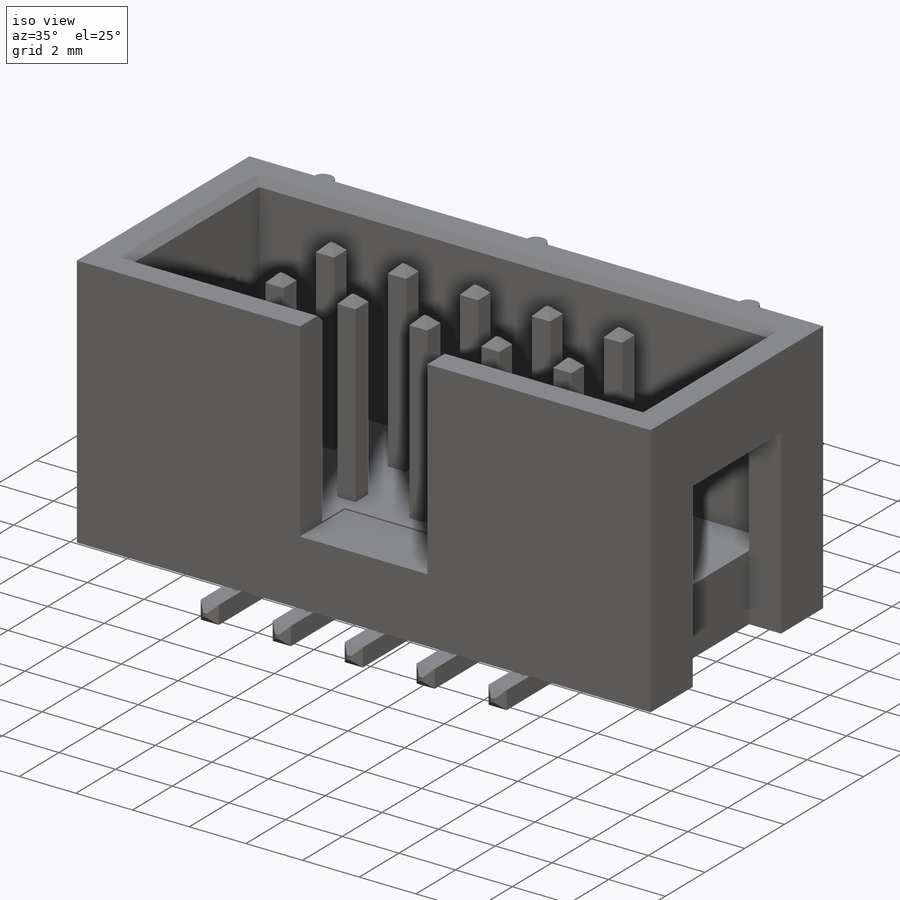
[diagram: iso view]
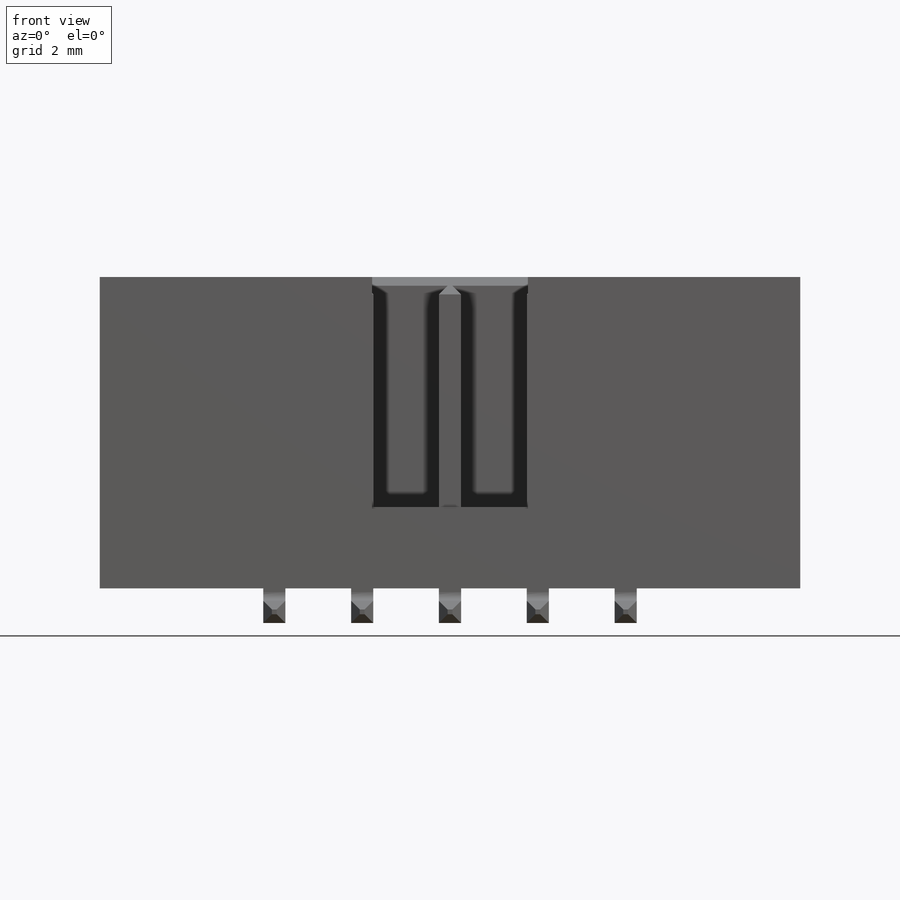
[diagram: front view]
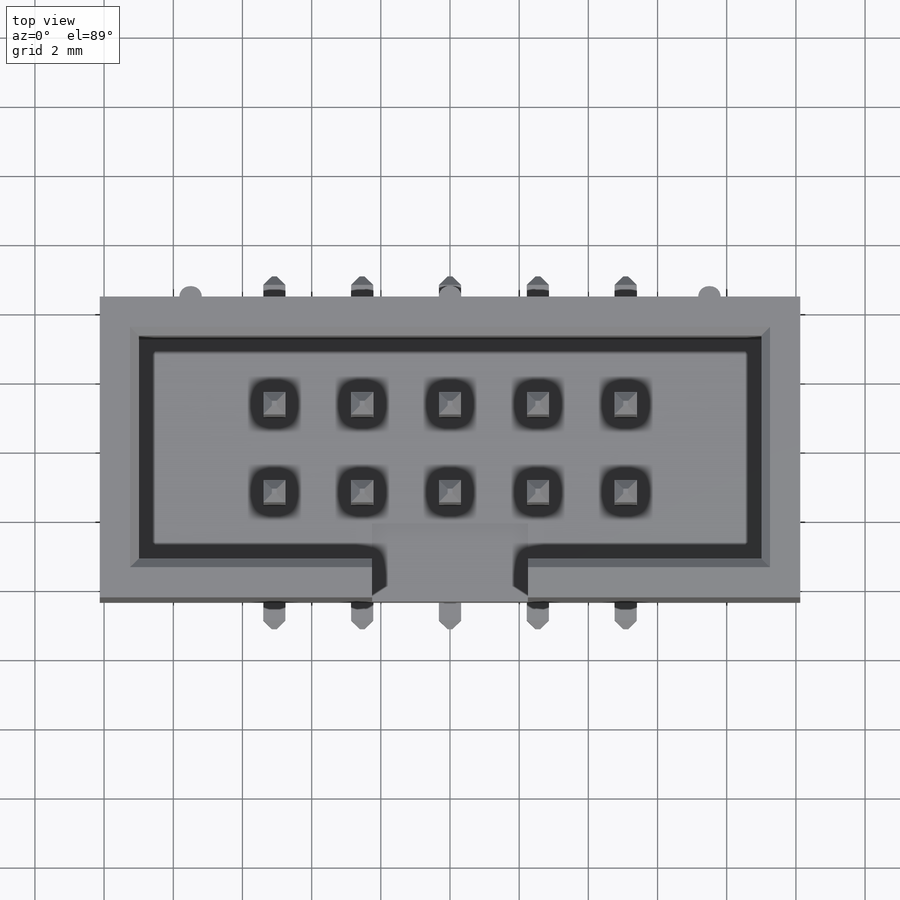
[diagram: top view]
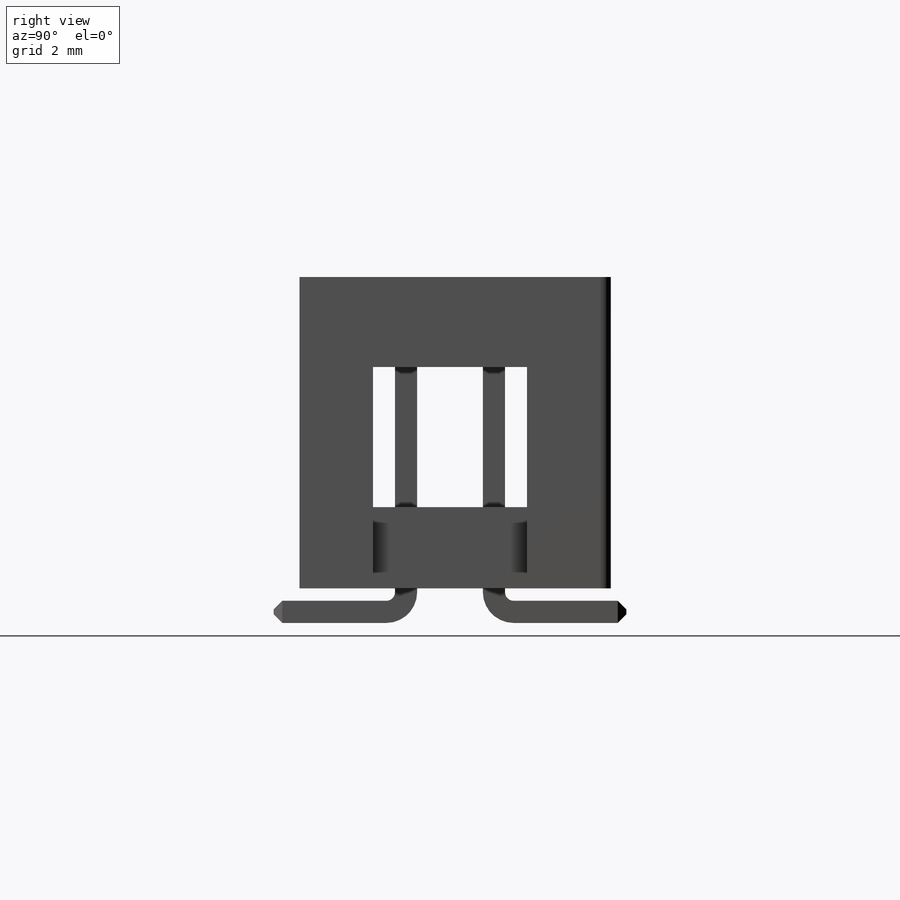
[diagram: right view]
SOLIDWORKS PART (.sldprt)
format: sldprt  version: not decoded by parser v0  size: 649,728 bytes
history: native  units: mm
features: sketch x28, mirror x11, sheet_metal_op x11, pattern_linear x9, cut_extrude x3, plane x3, chamfer x3, extrude x2, material x1, fillet x1 + 10 further entries (+13 scaffold rows collapsed; 10 parser-record rows omitted)
feature tree (105):
  scaffold x13  (default folders/planes/origin — collapsed)
  material  "Material <not specified>"
  sketch  "Sketch1"  dims[D1=20.25mm D2=8.7mm]
  extrude  "Boss-Extrude1"  Depth=9mm
  sketch  "Sketch2"  dims[c1.D1=7.5mm c1.D2=0.65mm c2.D1=2.625mm]
  extrude  "Boss-Extrude2"  Depth=0.3mm
  fillet  "Fillet1"  Radius=0.3mm
  sketch  "Sketch3"  dims[D1=18.0mm D2=6.45mm D3=8.7mm]
  cut_extrude  "Cut-Extrude1"  Depth=6.65mm
  sketch  "Sketch4"  dims[D1=4.5mm]
  cut_extrude  "Cut-Extrude2"  Depth=6.7mm
  plane  "Plane1"
  plane  "Plane3"
  sketch  "Sketch5"  dims[D1=4.45mm D2=6.4mm]
  cut_extrude  "Cut-Extrude3"  Depth=1.125mm
  mirror  "Mirror2"
  plane  "Plane2"  Offset=5.4mm
  sketch  "Sketch7"  dims[c1.D1=0.95mm c1.D2=0.25mm c1.D3=1.0mm c1.D4=0.75mm c2.D1=0.25mm c2.D2=0.5 c2.D3=0.0mm c2.D6=500.0mm]
  sheet_metal_op  "Base-Flange1"
  chamfer  "Chamfer1"  Distance=0.25mm Angle=45deg
  chamfer  "Chamfer2"  Distance=0.25mm Angle=45deg
  pattern_linear  "LPattern1"  Count1=1 Spacing1=0.25mm Spacing2=500mm
  pattern_linear  "DerivedBend2"  Count1=1 Spacing1=0.25mm Spacing2=500mm
  pattern_linear  "DerivedBend3"  Count1=1 Spacing1=0.25mm Spacing2=500mm
  pattern_linear  "DerivedBend4"  Count1=1 Count2=5 Spacing1=0.25mm Spacing2=500mm
  mirror  "Mirror3"
  pattern_linear  "DerivedBend5"  Count1=1 Spacing1=0.25mm Spacing2=500mm
  pattern_linear  "DerivedBend6"  Count1=1 Spacing1=0.25mm
  pattern_linear  "DerivedBend7"  Count1=1 Spacing1=0.25mm
  pattern_linear  "DerivedBend8"  Count1=1 Spacing1=0.25mm
  pattern_linear  "DerivedBend9"  Count1=1 Spacing1=0.25mm
  chamfer  "Chamfer3"  Distance=0.25mm Angle=45deg
  sketch  "Bend-Lines1"
  sketch  "Bounding-Box1"
  sheet_metal_op  "Sheet-Metal8"
  "Flat-Pattern8"
  sketch  "Bend-Lines2"
  sketch  "Bounding-Box2"
  parser-record x10  (decoder bookkeeping rows leaked as tree rows — omitted from the tree; the rows remain in map.json)
  mirror  "Sheet-Metal9"
  sheet_metal_op  "Flat-Pattern9"
  sketch  "Bend-Lines3"
  sketch  "Bounding-Box3"
  "Flatten-<DerivedBend1>1"
  mirror  "Sheet-Metal10"
  sheet_metal_op  "Flat-Pattern10"
  sketch  "Bend-Lines4"
  sketch  "Bounding-Box4"
  "Flatten-<DerivedBend2>1"
  mirror  "Sheet-Metal11"
  sheet_metal_op  "Flat-Pattern11"
  sketch  "Bend-Lines5"
  sketch  "Bounding-Box5"
  "Flatten-<DerivedBend3>1"
  mirror  "Sheet-Metal12"
  sheet_metal_op  "Flat-Pattern12"
  sketch  "Bend-Lines6"
  sketch  "Bounding-Box6"
  "Flatten-<DerivedBend4>1"
  mirror  "Sheet-Metal13"
  sheet_metal_op  "Flat-Pattern13"
  sketch  "Bend-Lines7"
  sketch  "Bounding-Box7"
  "Flatten-<DerivedBend5>1"
  mirror  "Sheet-Metal14"
  sheet_metal_op  "Flat-Pattern14"
  sketch  "Bend-Lines8"
  sketch  "Bounding-Box8"
  "Flatten-<DerivedBend6>1"
  mirror  "Sheet-Metal15"
  sheet_metal_op  "Flat-Pattern15"
  sketch  "Bend-Lines9"
  sketch  "Bounding-Box9"
  "Flatten-<DerivedBend7>1"
  mirror  "Sheet-Metal16"
  sheet_metal_op  "Flat-Pattern16"
  sketch  "Bend-Lines10"
  sketch  "Bounding-Box10"
  "Flatten-<DerivedBend8>1"
  mirror  "Sheet-Metal17"
  sheet_metal_op  "Flat-Pattern17"
  sketch  "Bend-Lines11"
  sketch  "Bounding-Box11"
  "Flatten-<DerivedBend9>1"
decode coverage: 24 of 68 modeling features carry decoded parameters; 10 rows unclassified (native names shown)
note: suppression state not decoded; provenance and decode notes live in map.json
